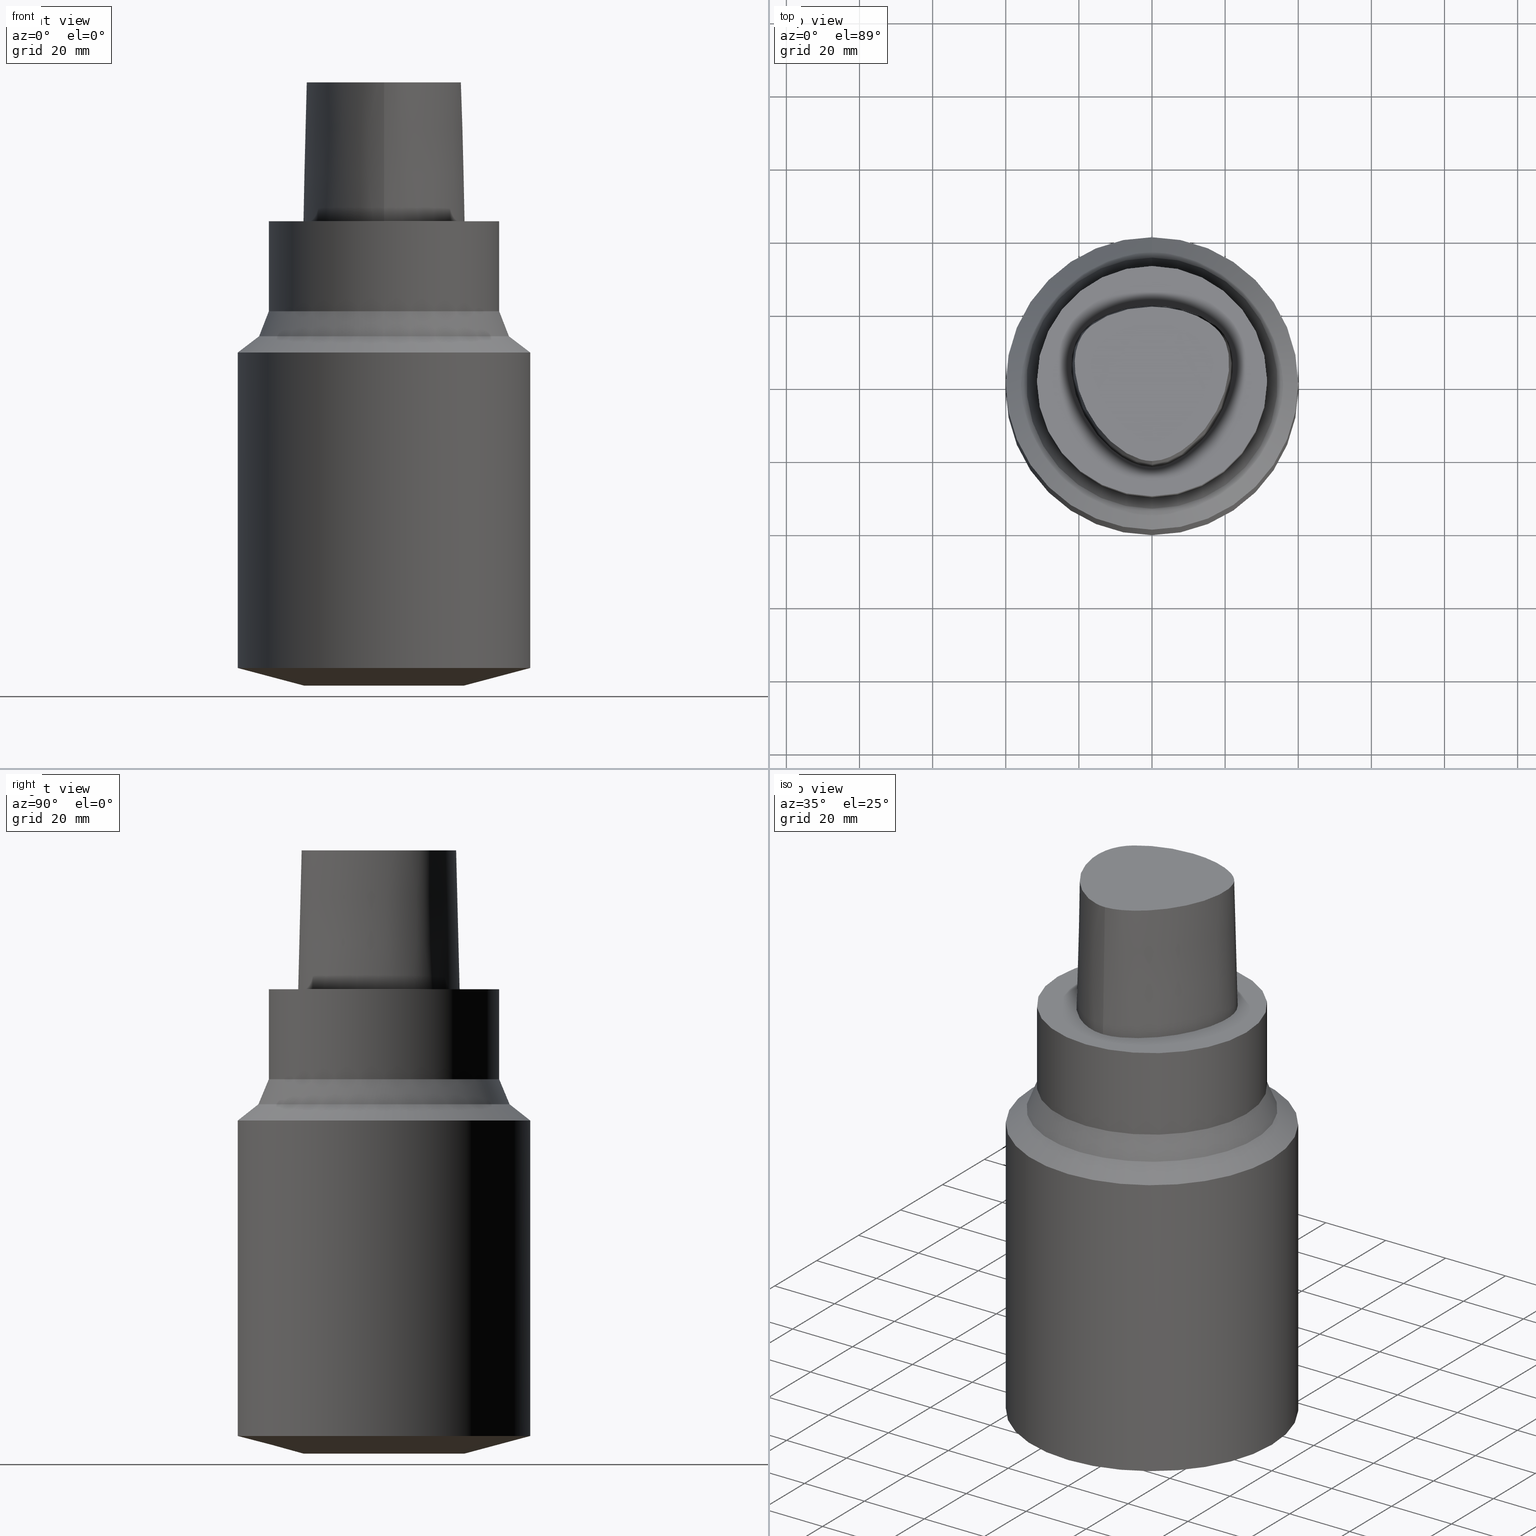
[diagram: canonical four-view strip — front | top / right | iso, engineering-drawing reading convention]
A machine part, canonical four-view strip (front | top / right | iso — engineering-drawing reading convention). The complete STEP part file that produces these views, byte-faithful:
ISO-10303-21;
HEADER;
FILE_DESCRIPTION((''),'1');
FILE_NAME('V:/01_Dxf_Field-HP\X2\FF71FF6FFF8CFF9F5916\X0\2013/BIGKAISER\X2\FF76FF80FF9BFF78FF9E63B28F095206\X0\_BKUS_201803/C6-BSL/C6-BSL1.500-5.stp','2018-03-14T07:46:52',(''),(''),'Spatial Interop R21 SP3','Kubotek KeyCreator 2011 V10.0.2 (22737)',' ');
FILE_SCHEMA(('automotive_design'));
ENDSEC;
DATA;
#1=MECHANICAL_DESIGN_GEOMETRIC_PRESENTATION_REPRESENTATION(' ',(#10,#11,#12,#13,#14,#15,#16,#17,#18,#19,#20,#21,#22,#23,#24,#25,#26,#27,#28,#29,#30,#31,#32,#33,#34,#35),#6);
#2=PRODUCT_DEFINITION_CONTEXT('',#36,'design');
#3=APPLICATION_PROTOCOL_DEFINITION('INTERNATIONAL STANDARD','automotive_design',1994,#36);
#4=PRODUCT_CATEGORY_RELATIONSHIP('NONE','NONE',#37,#38);
#5=SHAPE_DEFINITION_REPRESENTATION(#39,#40);
#6= (GEOMETRIC_REPRESENTATION_CONTEXT(3)GLOBAL_UNCERTAINTY_ASSIGNED_CONTEXT((#43))GLOBAL_UNIT_ASSIGNED_CONTEXT((#45,#46,#47))REPRESENTATION_CONTEXT('NONE','WORKSPACE'));
#10=STYLED_ITEM('',(#49,#50),#51);
#11=STYLED_ITEM('',(#52),#53);
#12=STYLED_ITEM('',(#54),#55);
#13=STYLED_ITEM('',(#56),#57);
#14=STYLED_ITEM('',(#58,#59),#60);
#15=STYLED_ITEM('',(#61),#62);
#16=STYLED_ITEM('',(#63),#64);
#17=STYLED_ITEM('',(#65,#66),#67);
#18=STYLED_ITEM('',(#68),#69);
#19=STYLED_ITEM('',(#70,#71),#72);
#20=STYLED_ITEM('',(#73,#74),#75);
#21=STYLED_ITEM('',(#76,#77),#78);
#22=STYLED_ITEM('',(#79),#80);
#23=STYLED_ITEM('',(#81,#82),#83);
#24=STYLED_ITEM('',(#84),#85);
#25=STYLED_ITEM('',(#86),#87);
#26=STYLED_ITEM('',(#88,#89),#90);
#27=STYLED_ITEM('',(#91,#92),#93);
#28=STYLED_ITEM('',(#94),#95);
#29=STYLED_ITEM('',(#96,#97),#98);
#30=STYLED_ITEM('',(#99),#100);
#31=STYLED_ITEM('',(#101,#102),#103);
#32=STYLED_ITEM('',(#104),#105);
#33=STYLED_ITEM('',(#106,#107),#108);
#34=STYLED_ITEM('',(#109),#110);
#35=STYLED_ITEM('',(#111),#112);
#36=APPLICATION_CONTEXT(' ');
#37=PRODUCT_CATEGORY('part','NONE');
#38=PRODUCT_RELATED_PRODUCT_CATEGORY('detail',' ',(#113));
#39=PRODUCT_DEFINITION_SHAPE('NONE','NONE',#114);
#40=ADVANCED_BREP_SHAPE_REPRESENTATION('Unnamed[1]',(#75,#115),#6);
#43=UNCERTAINTY_MEASURE_WITH_UNIT(LENGTH_MEASURE(1.0E-006),#45,'','');
#45= (CONVERSION_BASED_UNIT('MILLIMETRE',#118)LENGTH_UNIT()NAMED_UNIT(#121));
#46= (NAMED_UNIT(#123)PLANE_ANGLE_UNIT()SI_UNIT($,.RADIAN.));
#47= (NAMED_UNIT(#123)SOLID_ANGLE_UNIT()SI_UNIT($,.STERADIAN.));
#49=PRESENTATION_STYLE_ASSIGNMENT((#129));
#50=PRESENTATION_STYLE_ASSIGNMENT((#130));
#51=ADVANCED_FACE('Unnamed[1]',(#131,#132),#133,.T.);
#52=PRESENTATION_STYLE_ASSIGNMENT((#134));
#53=EDGE_CURVE('Unnamed[1]',#135,#136,#137,.T.);
#54=PRESENTATION_STYLE_ASSIGNMENT((#138));
#55=EDGE_CURVE('Unnamed[1]',#139,#135,#140,.T.);
#56=PRESENTATION_STYLE_ASSIGNMENT((#141));
#57=EDGE_CURVE('Unnamed[1]',#142,#143,#144,.T.);
#58=PRESENTATION_STYLE_ASSIGNMENT((#145));
#59=PRESENTATION_STYLE_ASSIGNMENT((#146));
#60=ADVANCED_FACE('Unnamed[1]',(#147),#148,.T.);
#61=PRESENTATION_STYLE_ASSIGNMENT((#149));
#62=EDGE_CURVE('Unnamed[1]',#150,#150,#151,.T.);
#63=PRESENTATION_STYLE_ASSIGNMENT((#152));
#64=EDGE_CURVE('Unnamed[1]',#142,#136,#153,.T.);
#65=PRESENTATION_STYLE_ASSIGNMENT((#154));
#66=PRESENTATION_STYLE_ASSIGNMENT((#155));
#67=ADVANCED_FACE('Unnamed[1]',(#156),#157,.T.);
#68=PRESENTATION_STYLE_ASSIGNMENT((#158));
#69=EDGE_CURVE('Unnamed[1]',#136,#139,#159,.T.);
#70=PRESENTATION_STYLE_ASSIGNMENT((#160));
#71=PRESENTATION_STYLE_ASSIGNMENT((#161));
#72=ADVANCED_FACE('Unnamed[1]',(#162,#163),#164,.T.);
#73=PRESENTATION_STYLE_ASSIGNMENT((#165));
#74=PRESENTATION_STYLE_ASSIGNMENT((#166));
#75=MANIFOLD_SOLID_BREP('Unnamed[1]',#167);
#76=PRESENTATION_STYLE_ASSIGNMENT((#168));
#77=PRESENTATION_STYLE_ASSIGNMENT((#169));
#78=ADVANCED_FACE('Unnamed[1]',(#170,#171),#172,.T.);
#79=PRESENTATION_STYLE_ASSIGNMENT((#173));
#80=EDGE_CURVE('Unnamed[1]',#174,#174,#175,.T.);
#81=PRESENTATION_STYLE_ASSIGNMENT((#176));
#82=PRESENTATION_STYLE_ASSIGNMENT((#177));
#83=ADVANCED_FACE('Unnamed[1]',(#178),#179,.T.);
#84=PRESENTATION_STYLE_ASSIGNMENT((#180));
#85=EDGE_CURVE('Unnamed[1]',#181,#181,#182,.T.);
#86=PRESENTATION_STYLE_ASSIGNMENT((#183));
#87=EDGE_CURVE('Unnamed[1]',#184,#184,#185,.T.);
#88=PRESENTATION_STYLE_ASSIGNMENT((#186));
#89=PRESENTATION_STYLE_ASSIGNMENT((#187));
#90=ADVANCED_FACE('Unnamed[1]',(#188,#189),#190,.T.);
#91=PRESENTATION_STYLE_ASSIGNMENT((#191));
#92=PRESENTATION_STYLE_ASSIGNMENT((#192));
#93=ADVANCED_FACE('Unnamed[1]',(#193),#194,.T.);
#94=PRESENTATION_STYLE_ASSIGNMENT((#195));
#95=EDGE_CURVE('Unnamed[1]',#143,#142,#196,.T.);
#96=PRESENTATION_STYLE_ASSIGNMENT((#197));
#97=PRESENTATION_STYLE_ASSIGNMENT((#198));
#98=ADVANCED_FACE('Unnamed[1]',(#199,#200),#201,.T.);
#99=PRESENTATION_STYLE_ASSIGNMENT((#202));
#100=EDGE_CURVE('Unnamed[1]',#143,#139,#203,.T.);
#101=PRESENTATION_STYLE_ASSIGNMENT((#204));
#102=PRESENTATION_STYLE_ASSIGNMENT((#205));
#103=ADVANCED_FACE('Unnamed[1]',(#206),#207,.T.);
#104=PRESENTATION_STYLE_ASSIGNMENT((#208));
#105=EDGE_CURVE('Unnamed[1]',#209,#209,#210,.T.);
#106=PRESENTATION_STYLE_ASSIGNMENT((#211));
#107=PRESENTATION_STYLE_ASSIGNMENT((#212));
#108=ADVANCED_FACE('Unnamed[1]',(#213,#214),#215,.T.);
#109=PRESENTATION_STYLE_ASSIGNMENT((#216));
#110=EDGE_CURVE('Unnamed[1]',#217,#217,#218,.T.);
#111=PRESENTATION_STYLE_ASSIGNMENT((#219));
#112=EDGE_CURVE('Unnamed[1]',#143,#135,#220,.T.);
#113=PRODUCT('Unnamed[1]','Unnamed[1]','PART-Unnamed[1]-DESC',(#221));
#114=PRODUCT_DEFINITION('NONE','NONE',#222,#2);
#115=AXIS2_PLACEMENT_3D('',#223,#224,#225);
#118=LENGTH_MEASURE_WITH_UNIT(LENGTH_MEASURE(1.0),#226);
#121=DIMENSIONAL_EXPONENTS(1.0,0.0,0.0,0.0,0.0,0.0,0.0);
#123=DIMENSIONAL_EXPONENTS(0.0,0.0,0.0,0.0,0.0,0.0,0.0);
#129=SURFACE_STYLE_USAGE(.BOTH.,#227);
#130=CURVE_STYLE('',#228,POSITIVE_LENGTH_MEASURE(1000.0),#229);
#131=FACE_BOUND('',#230,.T.);
#132=FACE_BOUND('',#231,.T.);
#133=CONICAL_SURFACE('',#232,30.999999999998,1.30899693899575);
#134=CURVE_STYLE('',#233,POSITIVE_LENGTH_MEASURE(1000.0),#234);
#135=VERTEX_POINT('',#235);
#136=VERTEX_POINT('',#236);
#137=B_SPLINE_CURVE_WITH_KNOTS('',3,(#237,#238,#239,#240,#241,#242,#243,#244,#245,#246,#247,#248,#249,#250,#251,#252,#253),.UNSPECIFIED.,.F.,.F.,(4,1,1,1,1,1,1,1,1,1,1,1,1,1,4),(-13.2302678617486,-12.816821991069,-12.4033761203893,-11.9899302497097,-11.57648437903,-11.1630385083504,-10.9563155730106,-10.7495926376707,-10.3361467669911,-9.92270089631145,-9.09580915495216,-8.26891741359287,-7.44202567223358,-7.02857980155394,-6.6151339308743),.UNSPECIFIED.);
#138=CURVE_STYLE('',#254,POSITIVE_LENGTH_MEASURE(1000.0),#255);
#139=VERTEX_POINT('',#256);
#140=CIRCLE('',#257,0.949936168436318);
#141=CURVE_STYLE('',#258,POSITIVE_LENGTH_MEASURE(1000.0),#259);
#142=VERTEX_POINT('',#260);
#143=VERTEX_POINT('',#261);
#144=B_SPLINE_CURVE_WITH_KNOTS('',3,(#262,#263,#264,#265,#266,#267,#268,#269,#270,#271,#272,#273,#274,#275,#276,#277),.UNSPECIFIED.,.F.,.F.,(4,1,1,1,1,1,1,1,1,1,1,1,1,4),(6.61513393087476,6.99917207152274,7.48193246986995,7.96289324787093,8.45540287038584,9.10291653679981,9.67129810936083,10.1618749681153,10.6358867802489,11.1080734988593,11.6043706019633,12.09451993853,12.6985979284494,13.2302678617486),.UNSPECIFIED.);
#145=SURFACE_STYLE_USAGE(.BOTH.,#278);
#146=CURVE_STYLE('',#279,POSITIVE_LENGTH_MEASURE(1000.0),#280);
#147=FACE_OUTER_BOUND('',#281,.T.);
#148=B_SPLINE_SURFACE_WITH_KNOTS('',3,3,((#282,#283,#284,#285),(#286,#287,#288,#289),(#290,#291,#292,#293),(#294,#295,#296,#297),(#298,#299,#300,#301),(#302,#303,#304,#305),(#306,#307,#308,#309),(#310,#311,#312,#313),(#314,#315,#316,#317),(#318,#319,#320,#321),(#322,#323,#324,#325),(#326,#327,#328,#329),(#330,#331,#332,#333),(#334,#335,#336,#337),(#338,#339,#340,#341),(#342,#343,#344,#345),(#346,#347,#348,#349)),.UNSPECIFIED.,.F.,.F.,.F.,(4,1,1,1,1,1,1,1,1,1,1,1,1,1,4),(4,4),(-13.2302678617486,-12.816821991069,-12.4033761203893,-11.9899302497097,-11.57648437903,-11.1630385083504,-10.9563155730106,-10.7495926376707,-10.3361467669911,-9.92270089631145,-9.09580915495216,-8.26891741359287,-7.44202567223358,-7.02857980155394,-6.6151339308743),(-3.8,0.0),.UNSPECIFIED.);
#149=CURVE_STYLE('',#350,POSITIVE_LENGTH_MEASURE(1000.0),#351);
#150=VERTEX_POINT('',#352);
#151=CIRCLE('',#353,31.5);
#152=CURVE_STYLE('',#354,POSITIVE_LENGTH_MEASURE(1000.0),#355);
#153=LINE('',#356,#357);
#154=SURFACE_STYLE_USAGE(.BOTH.,#358);
#155=CURVE_STYLE('',#359,POSITIVE_LENGTH_MEASURE(1000.0),#360);
#156=FACE_OUTER_BOUND('',#361,.T.);
#157=B_SPLINE_SURFACE_WITH_KNOTS('',3,3,((#362,#363,#364,#365),(#366,#367,#368,#369),(#370,#371,#372,#373),(#374,#375,#376,#377),(#378,#379,#380,#381),(#382,#383,#384,#385),(#386,#387,#388,#389),(#390,#391,#392,#393),(#394,#395,#396,#397),(#398,#399,#400,#401),(#402,#403,#404,#405),(#406,#407,#408,#409),(#410,#411,#412,#413),(#414,#415,#416,#417),(#418,#419,#420,#421),(#422,#423,#424,#425),(#426,#427,#428,#429),(#430,#431,#432,#433)),.UNSPECIFIED.,.F.,.F.,.F.,(4,1,1,1,1,1,1,1,1,2,1,1,1,1,4),(4,4),(-6.6151339308743,-6.20168806019465,-5.78824218951501,-5.37479631883537,-4.96135044815572,-4.13445870679644,-3.30756696543715,-2.89412109475751,-2.48067522407786,-2.06722935339822,-1.65378348271857,-1.24033761203893,-0.826891741359287,-0.413445870679644,0.0),(-3.8,0.0),.UNSPECIFIED.);
#158=CURVE_STYLE('',#434,POSITIVE_LENGTH_MEASURE(1000.0),#435);
#159=B_SPLINE_CURVE_WITH_KNOTS('',3,(#436,#437,#438,#439,#440,#441,#442,#443,#444,#445,#446,#447,#448,#449,#450,#451,#452,#453),.UNSPECIFIED.,.F.,.F.,(4,1,1,1,1,1,1,1,1,2,1,1,1,1,4),(-6.6151339308743,-6.20168806019465,-5.78824218951501,-5.37479631883537,-4.96135044815572,-4.13445870679644,-3.30756696543715,-2.89412109475751,-2.48067522407786,-2.06722935339822,-1.65378348271857,-1.24033761203893,-0.826891741359287,-0.413445870679644,0.0),.UNSPECIFIED.);
#160=SURFACE_STYLE_USAGE(.BOTH.,#454);
#161=CURVE_STYLE('',#455,POSITIVE_LENGTH_MEASURE(1000.0),#456);
#162=FACE_BOUND('',#457,.T.);
#163=FACE_BOUND('',#458,.T.);
#164=CONICAL_SURFACE('',#459,37.1747810008946,0.903819641351559);
#165=SURFACE_STYLE_USAGE(.BOTH.,#460);
#166=CURVE_STYLE('',#461,POSITIVE_LENGTH_MEASURE(1000.0),#462);
#167=CLOSED_SHELL('',(#60,#67,#103,#83,#90,#108,#98,#72,#78,#51,#93));
#168=SURFACE_STYLE_USAGE(.BOTH.,#463);
#169=CURVE_STYLE('',#464,POSITIVE_LENGTH_MEASURE(1000.0),#465);
#170=FACE_BOUND('',#466,.T.);
#171=FACE_BOUND('',#467,.T.);
#172=CYLINDRICAL_SURFACE('',#468,40.0000000000142);
#173=CURVE_STYLE('',#469,POSITIVE_LENGTH_MEASURE(1000.0),#470);
#174=VERTEX_POINT('',#471);
#175=CIRCLE('',#472,40.0000000000324);
#176=SURFACE_STYLE_USAGE(.BOTH.,#473);
#177=CURVE_STYLE('',#474,POSITIVE_LENGTH_MEASURE(1000.0),#475);
#178=FACE_OUTER_BOUND('',#476,.T.);
#179=PLANE('',#477);
#180=CURVE_STYLE('',#478,POSITIVE_LENGTH_MEASURE(1000.0),#479);
#181=VERTEX_POINT('',#480);
#182=CIRCLE('',#481,31.5);
#183=CURVE_STYLE('',#482,POSITIVE_LENGTH_MEASURE(1000.0),#483);
#184=VERTEX_POINT('',#484);
#185=CIRCLE('',#485,34.3495620017568);
#186=SURFACE_STYLE_USAGE(.BOTH.,#486);
#187=CURVE_STYLE('',#487,POSITIVE_LENGTH_MEASURE(1000.0),#488);
#188=FACE_BOUND('',#489,.T.);
#189=FACE_OUTER_BOUND('',#490,.T.);
#190=PLANE('',#491);
#191=SURFACE_STYLE_USAGE(.BOTH.,#492);
#192=CURVE_STYLE('',#493,POSITIVE_LENGTH_MEASURE(1000.0),#494);
#193=FACE_OUTER_BOUND('',#495,.T.);
#194=PLANE('',#496);
#195=CURVE_STYLE('',#497,POSITIVE_LENGTH_MEASURE(1000.0),#498);
#196=B_SPLINE_CURVE_WITH_KNOTS('',3,(#499,#500,#501,#502,#503,#504,#505,#506,#507,#508,#509,#510,#511,#512,#513,#514),.UNSPECIFIED.,.F.,.F.,(4,1,1,1,1,1,1,1,1,1,1,1,1,4),(0.0,0.447924670568964,0.9388024242536,1.50591409090711,2.07314340012323,2.72424957442464,3.2253501842849,3.80982102049476,4.34867996267067,4.85900173381144,5.37972031856977,6.03459825488646,6.61113557741484,6.61513393087395),.UNSPECIFIED.);
#197=SURFACE_STYLE_USAGE(.BOTH.,#515);
#198=CURVE_STYLE('',#516,POSITIVE_LENGTH_MEASURE(1000.0),#517);
#199=FACE_BOUND('',#518,.T.);
#200=FACE_BOUND('',#519,.T.);
#201=CONICAL_SURFACE('',#520,32.9247810008784,0.394554409968622);
#202=CURVE_STYLE('',#521,POSITIVE_LENGTH_MEASURE(1000.0),#522);
#203=LINE('',#523,#524);
#204=SURFACE_STYLE_USAGE(.BOTH.,#525);
#205=CURVE_STYLE('',#526,POSITIVE_LENGTH_MEASURE(1000.0),#527);
#206=FACE_OUTER_BOUND('',#528,.T.);
#207=CONICAL_SURFACE('',#529,1.0,0.0249931148600041);
#208=CURVE_STYLE('',#530,POSITIVE_LENGTH_MEASURE(1000.0),#531);
#209=VERTEX_POINT('',#532);
#210=CIRCLE('',#533,21.9999999999999);
#211=SURFACE_STYLE_USAGE(.BOTH.,#534);
#212=CURVE_STYLE('',#535,POSITIVE_LENGTH_MEASURE(1000.0),#536);
#213=FACE_BOUND('',#537,.T.);
#214=FACE_BOUND('',#538,.T.);
#215=CYLINDRICAL_SURFACE('',#539,31.5);
#216=CURVE_STYLE('',#540,POSITIVE_LENGTH_MEASURE(1000.0),#541);
#217=VERTEX_POINT('',#542);
#218=CIRCLE('',#543,39.9999999999961);
#219=CURVE_STYLE('',#544,POSITIVE_LENGTH_MEASURE(1000.0),#545);
#220=LINE('',#546,#547);
#221=PRODUCT_CONTEXT('',#36,'mechanical');
#222=PRODUCT_DEFINITION_FORMATION_WITH_SPECIFIED_SOURCE(' ','NONE',#113,.NOT_KNOWN.);
#223=CARTESIAN_POINT('',(0.0,0.0,0.0));
#224=DIRECTION('',(0.0,0.0,1.0));
#225=DIRECTION('',(1.0,0.0,0.0));
#226= (NAMED_UNIT(#121)LENGTH_UNIT()SI_UNIT(.MILLI.,.METRE.));
#227=SURFACE_SIDE_STYLE('',(#549));
#228=DRAUGHTING_PRE_DEFINED_CURVE_FONT('continuous');
#229=COLOUR_RGB('',0.0,1.0,0.0);
#230=EDGE_LOOP('',(#550));
#231=EDGE_LOOP('',(#551));
#232=AXIS2_PLACEMENT_3D('',#552,#553,#554);
#233=DRAUGHTING_PRE_DEFINED_CURVE_FONT('continuous');
#234=COLOUR_RGB('',0.0,1.0,0.0);
#235=CARTESIAN_POINT('',(0.044682985379347,20.6765087343109,1.61778115328528E-031));
#236=CARTESIAN_POINT('',(0.04359356758149,-23.4691235068931,7.78075697532443E-032));
#237=CARTESIAN_POINT('',(0.044682985379347,20.6765087343109,1.61778115328528E-031));
#238=CARTESIAN_POINT('',(1.42379272427753,20.6097915814392,8.62816615085482E-032));
#239=CARTESIAN_POINT('',(4.2230955003445,20.4837538303966,1.4791141972894E-031));
#240=CARTESIAN_POINT('',(8.47220762821777,19.6890432607088,9.86076131526265E-032));
#241=CARTESIAN_POINT('',(12.5141247708253,18.2434968480404,0.0));
#242=CARTESIAN_POINT('',(16.3038624872874,16.1734192182143,1.97215226305253E-031));
#243=CARTESIAN_POINT('',(19.1446913988473,13.7036723639434,-1.97215226305253E-031));
#244=CARTESIAN_POINT('',(20.7319894342149,11.1014620996188,0.0));
#245=CARTESIAN_POINT('',(21.7831756505763,8.28099229708081,-1.97215226305253E-031));
#246=CARTESIAN_POINT('',(22.2258240701438,4.60865440596506,0.0));
#247=CARTESIAN_POINT('',(21.7436130080666,-1.11326526354485,0.0));
#248=CARTESIAN_POINT('',(19.5519487660502,-7.95432366164584,0.0));
#249=CARTESIAN_POINT('',(14.9574167123838,-15.2089785567293,0.0));
#250=CARTESIAN_POINT('',(9.66840283021945,-20.0827414369705,-9.86076131526265E-032));
#251=CARTESIAN_POINT('',(4.51628650521788,-22.7946374572188,-9.86076131526265E-032));
#252=CARTESIAN_POINT('',(1.55867251738073,-23.4612972770043,-1.23259516440783E-032));
#253=CARTESIAN_POINT('',(0.04359356758149,-23.4691235068931,7.78075697532443E-032));
#254=DRAUGHTING_PRE_DEFINED_CURVE_FONT('continuous');
#255=COLOUR_RGB('',0.0,1.0,0.0);
#256=CARTESIAN_POINT('',(-0.045171994691285,20.6766009553285,1.6755590516169E-031));
#257=AXIS2_PLACEMENT_3D('',#555,#556,#557);
#258=DRAUGHTING_PRE_DEFINED_CURVE_FONT('continuous');
#259=COLOUR_RGB('',0.0,1.0,0.0);
#260=CARTESIAN_POINT('',(0.038736923393866,-22.5191997536361,38.0));
#261=CARTESIAN_POINT('',(-0.001218547003662,19.7276821925089,38.0));
#262=CARTESIAN_POINT('',(0.038736923394311,-22.519199753636,38.0));
#263=CARTESIAN_POINT('',(1.31742058183662,-22.512662269405,38.0));
#264=CARTESIAN_POINT('',(4.2093773447498,-21.9116226439989,38.0));
#265=CARTESIAN_POINT('',(8.20895504542113,-19.7798683845067,38.0));
#266=CARTESIAN_POINT('',(11.9784633234593,-16.681663904162,38.0));
#267=CARTESIAN_POINT('',(15.5308821579362,-12.5807487594113,38.0));
#268=CARTESIAN_POINT('',(18.4566248438667,-7.64932246015528,38.0));
#269=CARTESIAN_POINT('',(20.4036090752029,-2.27012499825289,38.0));
#270=CARTESIAN_POINT('',(21.2357187429189,2.79891401173156,38.0));
#271=CARTESIAN_POINT('',(21.0811206267748,7.62543090736657,38.0));
#272=CARTESIAN_POINT('',(19.3383577336563,12.2772250726194,38.0));
#273=CARTESIAN_POINT('',(15.5796322014404,15.5799672120682,38.0));
#274=CARTESIAN_POINT('',(10.8392956074438,17.9834601687347,38.0));
#275=CARTESIAN_POINT('',(5.56068045850571,19.4586143858472,38.0));
#276=CARTESIAN_POINT('',(1.77223893711014,19.6418877095654,38.0));
#277=CARTESIAN_POINT('',(-0.001218367817519,19.7276822012873,38.0));
#278=SURFACE_SIDE_STYLE('',(#558));
#279=DRAUGHTING_PRE_DEFINED_CURVE_FONT('continuous');
#280=COLOUR_RGB('',0.0,1.0,0.0);
#281=EDGE_LOOP('',(#559,#560,#561,#562));
#282=CARTESIAN_POINT('',(-0.001218367817519,19.7276822012873,38.0));
#283=CARTESIAN_POINT('',(0.014082083248157,20.0439577123075,25.3333333333066));
#284=CARTESIAN_POINT('',(0.029382534313671,20.3602332232908,12.6666666666934));
#285=CARTESIAN_POINT('',(0.044682985379347,20.6765087343109,1.61778115328528E-031));
#286=CARTESIAN_POINT('',(1.37788651195108,19.6609652834875,38.0));
#287=CARTESIAN_POINT('',(1.3931885827258,19.9772407169847,25.3333333333066));
#288=CARTESIAN_POINT('',(1.40849065356095,20.2935162254648,12.6666666666934));
#289=CARTESIAN_POINT('',(1.42379272427753,20.6097915814392,8.62816615085482E-032));
#290=CARTESIAN_POINT('',(4.135446440878,19.5347778787784,38.0));
#291=CARTESIAN_POINT('',(4.16466278851883,19.8511031866125,25.3333333333066));
#292=CARTESIAN_POINT('',(4.1938791526746,20.1674284644204,12.6666666666934));
#293=CARTESIAN_POINT('',(4.2230955003445,20.4837538303966,1.4791141972894E-031));
#294=CARTESIAN_POINT('',(8.213607363795,18.7706026638736,38.0));
#295=CARTESIAN_POINT('',(8.29980745008421,19.0767495109635,25.3333333333066));
#296=CARTESIAN_POINT('',(8.38600751285747,19.3828964329996,12.6666666666934));
#297=CARTESIAN_POINT('',(8.47220762821777,19.6890432607088,9.86076131526265E-032));
#298=CARTESIAN_POINT('',(12.1316338645671,17.3698624840857,38.0));
#299=CARTESIAN_POINT('',(12.2591308270381,17.6610739397708,25.3333333333066));
#300=CARTESIAN_POINT('',(12.3866278083543,17.9522853923553,12.6666666666934));
#301=CARTESIAN_POINT('',(12.5141247708253,18.2434968480404,0.0));
#302=CARTESIAN_POINT('',(15.7706546153679,15.3789501349612,38.0));
#303=CARTESIAN_POINT('',(15.9483905900895,15.6437731794811,25.3333333333066));
#304=CARTESIAN_POINT('',(16.1261265513272,15.9085961736944,12.6666666666934));
#305=CARTESIAN_POINT('',(16.3038624872874,16.1734192182143,1.97215226305253E-031));
#306=CARTESIAN_POINT('',(18.4265894256284,13.0570022172893,38.0));
#307=CARTESIAN_POINT('',(18.6659567517146,13.2725589420689,25.3333333333066));
#308=CARTESIAN_POINT('',(18.9053240921419,13.4881156488541,12.6666666666934));
#309=CARTESIAN_POINT('',(19.1446913988473,13.7036723639434,-1.97215226305253E-031));
#310=CARTESIAN_POINT('',(19.8679958653038,10.6923771981998,38.0));
#311=CARTESIAN_POINT('',(20.1559937048299,10.8287388264873,25.3333333333066));
#312=CARTESIAN_POINT('',(20.4439915656177,10.965100461641,12.6666666666934));
#313=CARTESIAN_POINT('',(20.7319894342149,11.1014620996188,0.0));
#314=CARTESIAN_POINT('',(20.8470867582337,8.07149548576131,38.0));
#315=CARTESIAN_POINT('',(21.1591164072431,8.14132775555392,25.3333333333066));
#316=CARTESIAN_POINT('',(21.4711459821861,8.21116003697855,12.6666666666934));
#317=CARTESIAN_POINT('',(21.7831756505763,8.28099229708081,-1.97215226305253E-031));
#318=CARTESIAN_POINT('',(21.2693244256982,4.61157245650171,38.0));
#319=CARTESIAN_POINT('',(21.5881576801997,4.6105997689982,25.3333333333066));
#320=CARTESIAN_POINT('',(21.9069908544037,4.60962709346857,12.6666666666934));
#321=CARTESIAN_POINT('',(22.2258240701438,4.60865440596506,0.0));
#322=CARTESIAN_POINT('',(20.8071610855575,-0.912828649855193,38.0));
#323=CARTESIAN_POINT('',(21.119311671178,-0.979640884839481,25.3333333333066));
#324=CARTESIAN_POINT('',(21.4314624224461,-1.04645306732201,12.6666666666934));
#325=CARTESIAN_POINT('',(21.7436130080666,-1.11326526354485,0.0));
#326=CARTESIAN_POINT('',(18.6841935581315,-7.54428794252837,38.0));
#327=CARTESIAN_POINT('',(18.9734452551861,-7.6809665891091,25.3333333333066));
#328=CARTESIAN_POINT('',(19.2626970689956,-7.81764505382656,12.6666666666934));
#329=CARTESIAN_POINT('',(19.5519487660502,-7.95432366164584,0.0));
#330=CARTESIAN_POINT('',(14.2175552814,-14.5971504342323,38.0));
#331=CARTESIAN_POINT('',(14.4641757465198,-14.8010930946929,25.3333333333066));
#332=CARTESIAN_POINT('',(14.710796247264,-15.0050359737917,12.6666666666934));
#333=CARTESIAN_POINT('',(14.9574167123838,-15.2089785567293,0.0));
#334=CARTESIAN_POINT('',(9.0844808732933,-19.3179298129689,38.0));
#335=CARTESIAN_POINT('',(9.27912152349017,-19.572866915557,25.3333333333066));
#336=CARTESIAN_POINT('',(9.47376218971294,-19.827804295621,12.6666666666934));
#337=CARTESIAN_POINT('',(9.66840283021945,-20.0827414369705,-9.86076131526265E-032));
#338=CARTESIAN_POINT('',(4.17112919194182,-21.8987568152736,38.0));
#339=CARTESIAN_POINT('',(4.28618163483998,-22.1973837173649,25.3333333333066));
#340=CARTESIAN_POINT('',(4.40123406239433,-22.4960105163661,12.6666666666934));
#341=CARTESIAN_POINT('',(4.51628650521788,-22.7946374572188,-9.86076131526265E-032));
#342=CARTESIAN_POINT('',(1.41533654381097,-22.5120888467812,38.0));
#343=CARTESIAN_POINT('',(1.46311520162011,-22.8284916374445,25.3333333333066));
#344=CARTESIAN_POINT('',(1.51089385942236,-23.144894486341,12.6666666666934));
#345=CARTESIAN_POINT('',(1.55867251738073,-23.4612972770043,-1.23259516440783E-032));
#346=CARTESIAN_POINT('',(0.038736923393866,-22.5191997536361,38.0));
#347=CARTESIAN_POINT('',(0.04035580478973,-22.8358410047159,25.3333333333066));
#348=CARTESIAN_POINT('',(0.041974686185626,-23.1524822558133,12.6666666666934));
#349=CARTESIAN_POINT('',(0.04359356758149,-23.4691235068931,7.78075697532443E-032));
#350=DRAUGHTING_PRE_DEFINED_CURVE_FONT('continuous');
#351=COLOUR_RGB('',0.0,1.0,0.0);
#352=CARTESIAN_POINT('',(1.50597243309191E-015,31.5,-24.594396264138));
#353=AXIS2_PLACEMENT_3D('',#563,#564,#565);
#354=DRAUGHTING_PRE_DEFINED_CURVE_FONT('continuous');
#355=COLOUR_RGB('',0.0,1.0,0.0);
#356=CARTESIAN_POINT('',(0.038736923393866,-22.5191997536361,38.0));
#357=VECTOR('',#566,38.0118715498723);
#358=SURFACE_SIDE_STYLE('',(#567));
#359=DRAUGHTING_PRE_DEFINED_CURVE_FONT('continuous');
#360=COLOUR_RGB('',0.0,1.0,0.0);
#361=EDGE_LOOP('',(#568,#569,#570,#571));
#362=CARTESIAN_POINT('',(0.038736923393866,-22.5191997536361,38.0));
#363=CARTESIAN_POINT('',(0.04035580478973,-22.8358410047159,25.3333333333066));
#364=CARTESIAN_POINT('',(0.041974686185626,-23.1524822558133,12.6666666666934));
#365=CARTESIAN_POINT('',(0.04359356758149,-23.4691235068931,7.78075697532443E-032));
#366=CARTESIAN_POINT('',(-1.33786123484754,-22.5261650259856,38.0));
#367=CARTESIAN_POINT('',(-1.38240731367927,-22.8430399310626,25.3333333333066));
#368=CARTESIAN_POINT('',(-1.42695339249092,-23.1599147815484,12.6666666666934));
#369=CARTESIAN_POINT('',(-1.4714994713963,-23.4767895315797,2.46519032881566E-032));
#370=CARTESIAN_POINT('',(-4.08909358431842,-21.9268839879558,38.0));
#371=CARTESIAN_POINT('',(-4.20580731135515,-22.2249725500078,25.3333333333066));
#372=CARTESIAN_POINT('',(-4.32252104640446,-22.5230611651922,12.6666666666934));
#373=CARTESIAN_POINT('',(-4.43923476371401,-22.821149804767,-4.93038065763132E-032));
#374=CARTESIAN_POINT('',(-7.8333083619947,-19.9973514861616,38.0));
#375=CARTESIAN_POINT('',(-8.00568301809614,-20.2649260859405,25.3333333333066));
#376=CARTESIAN_POINT('',(-8.1780576640789,-20.532500564315,12.6666666666934));
#377=CARTESIAN_POINT('',(-8.35043230079961,-20.8000751253325,-9.86076131526265E-032));
#378=CARTESIAN_POINT('',(-11.1035071147626,-17.450554957873,38.0));
#379=CARTESIAN_POINT('',(-11.3173048160562,-17.6855739222454,25.3333333333066));
#380=CARTESIAN_POINT('',(-11.5311025116181,-17.9205928617968,12.6666666666934));
#381=CARTESIAN_POINT('',(-11.744900222602,-18.1556117874078,-1.97215226305253E-031));
#382=CARTESIAN_POINT('',(-14.9379535189057,-13.461132049697,38.0));
#383=CARTESIAN_POINT('',(-15.191622410671,-13.6542981711372,25.3333333333066));
#384=CARTESIAN_POINT('',(-15.4452913389853,-13.8474645327131,12.6666666666934));
#385=CARTESIAN_POINT('',(-15.6989602501314,-14.0406306929147,-1.97215226305253E-031));
#386=CARTESIAN_POINT('',(-18.6681263017223,-7.59391757463204,38.0));
#387=CARTESIAN_POINT('',(-18.9571800800711,-7.73136168081928,25.3333333333066));
#388=CARTESIAN_POINT('',(-19.2462337287194,-7.86880572399774,12.6666666666934));
#389=CARTESIAN_POINT('',(-19.5352875070682,-8.00624990770787,1.97215226305253E-031));
#390=CARTESIAN_POINT('',(-20.7857899858339,-0.952862819790525,38.0));
#391=CARTESIAN_POINT('',(-21.0973808305434,-1.02218087467418,25.3333333333066));
#392=CARTESIAN_POINT('',(-21.408971677436,-1.09149899580772,12.6666666666934));
#393=CARTESIAN_POINT('',(-21.7205626190491,-1.16081708945282,0.0));
#394=CARTESIAN_POINT('',(-21.2911760556836,4.5469215763113,38.0));
#395=CARTESIAN_POINT('',(-21.610337904926,4.54783292082248,25.3333333333066));
#396=CARTESIAN_POINT('',(-21.9294998290918,4.54874426225691,12.6666666666934));
#397=CARTESIAN_POINT('',(-22.2486616783342,4.54965558738736,0.0));
#398=CARTESIAN_POINT('',(-20.7345309521958,8.74909381391006,38.0));
#399=CARTESIAN_POINT('',(-21.0445680426217,8.83349432450556,25.3333333333066));
#400=CARTESIAN_POINT('',(-21.3546050933631,8.91789488065068,12.6666666666934));
#401=CARTESIAN_POINT('',(-21.6646421256468,9.00229539124618,0.0));
#402=CARTESIAN_POINT('',(-19.5531512296439,11.3174844040833,38.0));
#403=CARTESIAN_POINT('',(-19.8336219699984,11.4710077674213,25.3333333333066));
#404=CARTESIAN_POINT('',(-20.1140927680763,11.6245311337623,12.6666666666934));
#405=CARTESIAN_POINT('',(-20.3945635471922,11.7780544971003,0.0));
#406=CARTESIAN_POINT('',(-17.9100913688793,13.524027510437,38.0));
#407=CARTESIAN_POINT('',(-18.1375785458768,13.7487051053655,25.3333333333066));
#408=CARTESIAN_POINT('',(-18.365065665211,13.9733826973296,12.6666666666934));
#409=CARTESIAN_POINT('',(-18.5925528034471,14.1980602922581,0.0));
#410=CARTESIAN_POINT('',(-15.7996349656398,15.3762170634413,38.0));
#411=CARTESIAN_POINT('',(-15.9739761051783,15.6434029846179,25.3333333333066));
#412=CARTESIAN_POINT('',(-16.1483172726872,15.9105889315134,12.6666666666934));
#413=CARTESIAN_POINT('',(-16.3226584122258,16.1777748720707,0.0));
#414=CARTESIAN_POINT('',(-12.1175640002064,17.3825162484012,38.0));
#415=CARTESIAN_POINT('',(-12.2475895903055,17.6724842099619,25.3333333333066));
#416=CARTESIAN_POINT('',(-12.3776152070492,17.9624521925696,12.6666666666934));
#417=CARTESIAN_POINT('',(-12.5076407874579,18.2524201541303,9.86076131526265E-032));
#418=CARTESIAN_POINT('',(-8.21761151654222,18.7588585989994,38.0));
#419=CARTESIAN_POINT('',(-8.30099497910627,19.0656105427881,25.3333333333066));
#420=CARTESIAN_POINT('',(-8.38437843913309,19.3723624535439,12.6666666666934));
#421=CARTESIAN_POINT('',(-8.46776192107786,19.679114377952,9.86076131526265E-032));
#422=CARTESIAN_POINT('',(-4.13466093881225,19.5396850837055,38.0));
#423=CARTESIAN_POINT('',(-4.16658562115465,19.8557172636973,25.3333333333066));
#424=CARTESIAN_POINT('',(-4.19851029939059,20.1717494367229,12.6666666666934));
#425=CARTESIAN_POINT('',(-4.23043497193604,20.487781597334,1.97215226305253E-031));
#426=CARTESIAN_POINT('',(-1.37917220403684,19.6638560588908,38.0));
#427=CARTESIAN_POINT('',(-1.39382511685176,19.98016223565,25.3333333333066));
#428=CARTESIAN_POINT('',(-1.40847802945569,20.296468399885,12.6666666666934));
#429=CARTESIAN_POINT('',(-1.42313094248379,20.6127745766442,1.10933564796705E-031));
#430=CARTESIAN_POINT('',(-0.001218547003662,19.7276821925089,38.0));
#431=CARTESIAN_POINT('',(-0.015869696232855,20.043988446791,25.3333333333066));
#432=CARTESIAN_POINT('',(-0.030520845462092,20.3602947010464,12.6666666666934));
#433=CARTESIAN_POINT('',(-0.045171994691285,20.6766009553285,1.6755590516169E-031));
#434=DRAUGHTING_PRE_DEFINED_CURVE_FONT('continuous');
#435=COLOUR_RGB('',0.0,1.0,0.0);
#436=CARTESIAN_POINT('',(0.04359356758149,-23.4691235068931,7.78075697532443E-032));
#437=CARTESIAN_POINT('',(-1.4714994713963,-23.4767895315797,2.46519032881566E-032));
#438=CARTESIAN_POINT('',(-4.43923476371401,-22.821149804767,-4.93038065763132E-032));
#439=CARTESIAN_POINT('',(-8.35043230079961,-20.8000751253325,-9.86076131526265E-032));
#440=CARTESIAN_POINT('',(-11.744900222602,-18.1556117874078,-1.97215226305253E-031));
#441=CARTESIAN_POINT('',(-15.6989602501314,-14.0406306929147,-1.97215226305253E-031));
#442=CARTESIAN_POINT('',(-19.5352875070682,-8.00624990770787,1.97215226305253E-031));
#443=CARTESIAN_POINT('',(-21.7205626190491,-1.16081708945282,0.0));
#444=CARTESIAN_POINT('',(-22.2486616783342,4.54965558738736,0.0));
#445=CARTESIAN_POINT('',(-21.6646421256468,9.00229539124618,0.0));
#446=CARTESIAN_POINT('',(-20.3945635471922,11.7780544971003,0.0));
#447=CARTESIAN_POINT('',(-18.5925528034471,14.1980602922581,0.0));
#448=CARTESIAN_POINT('',(-16.3226584122258,16.1777748720707,0.0));
#449=CARTESIAN_POINT('',(-12.5076407874579,18.2524201541303,9.86076131526265E-032));
#450=CARTESIAN_POINT('',(-8.46776192107786,19.679114377952,9.86076131526265E-032));
#451=CARTESIAN_POINT('',(-4.23043497193604,20.487781597334,1.97215226305253E-031));
#452=CARTESIAN_POINT('',(-1.42313094248379,20.6127745766442,1.10933564796705E-031));
#453=CARTESIAN_POINT('',(-0.045171994691285,20.6766009553285,1.6755590516169E-031));
#454=SURFACE_SIDE_STYLE('',(#572));
#455=DRAUGHTING_PRE_DEFINED_CURVE_FONT('continuous');
#456=COLOUR_RGB('',0.0,1.0,0.0);
#457=EDGE_LOOP('',(#573));
#458=EDGE_LOOP('',(#574));
#459=AXIS2_PLACEMENT_3D('',#575,#576,#577);
#460=SURFACE_SIDE_STYLE('',(#578));
#461=DRAUGHTING_PRE_DEFINED_CURVE_FONT('continuous');
#462=COLOUR_RGB('',0.0,1.0,0.0);
#463=SURFACE_SIDE_STYLE('',(#579));
#464=DRAUGHTING_PRE_DEFINED_CURVE_FONT('continuous');
#465=COLOUR_RGB('',0.0,1.0,0.0);
#466=EDGE_LOOP('',(#580));
#467=EDGE_LOOP('',(#581));
#468=AXIS2_PLACEMENT_3D('',#582,#583,#584);
#469=DRAUGHTING_PRE_DEFINED_CURVE_FONT('continuous');
#470=COLOUR_RGB('',0.0,1.0,0.0);
#471=CARTESIAN_POINT('',(2.19742975838125E-015,40.0000000000324,-35.8867513459584));
#472=AXIS2_PLACEMENT_3D('',#585,#586,#587);
#473=SURFACE_SIDE_STYLE('',(#588));
#474=DRAUGHTING_PRE_DEFINED_CURVE_FONT('continuous');
#475=COLOUR_RGB('',0.0,1.0,0.0);
#476=EDGE_LOOP('',(#589,#590));
#477=AXIS2_PLACEMENT_3D('',#591,#592,#593);
#478=DRAUGHTING_PRE_DEFINED_CURVE_FONT('continuous');
#479=COLOUR_RGB('',0.0,1.0,0.0);
#480=CARTESIAN_POINT('',(-3.88267476788467E-031,31.5,3.85763741731416E-015));
#481=AXIS2_PLACEMENT_3D('',#594,#595,#596);
#482=DRAUGHTING_PRE_DEFINED_CURVE_FONT('continuous');
#483=COLOUR_RGB('',0.0,1.0,0.0);
#484=CARTESIAN_POINT('',(1.92501663402437E-015,34.3495620017568,-31.4379074091345));
#485=AXIS2_PLACEMENT_3D('',#597,#598,#599);
#486=SURFACE_SIDE_STYLE('',(#600));
#487=DRAUGHTING_PRE_DEFINED_CURVE_FONT('continuous');
#488=COLOUR_RGB('',0.0,1.0,0.0);
#489=EDGE_LOOP('',(#601,#602,#603));
#490=EDGE_LOOP('',(#604));
#491=AXIS2_PLACEMENT_3D('',#605,#606,#607);
#492=SURFACE_SIDE_STYLE('',(#608));
#493=DRAUGHTING_PRE_DEFINED_CURVE_FONT('continuous');
#494=COLOUR_RGB('',0.0,1.0,0.0);
#495=EDGE_LOOP('',(#609));
#496=AXIS2_PLACEMENT_3D('',#610,#611,#612);
#497=DRAUGHTING_PRE_DEFINED_CURVE_FONT('continuous');
#498=COLOUR_RGB('',0.0,1.0,0.0);
#499=CARTESIAN_POINT('',(-0.001218547003662,19.7276821925089,38.0));
#500=CARTESIAN_POINT('',(-1.49408492138443,19.6585333605309,38.0));
#501=CARTESIAN_POINT('',(-4.62297391420352,19.513604770166,38.0));
#502=CARTESIAN_POINT('',(-9.56160616752212,18.4291575730197,38.0));
#503=CARTESIAN_POINT('',(-14.5427684976927,16.2697452580488,38.0));
#504=CARTESIAN_POINT('',(-19.4315563551602,12.5302108980807,38.0));
#505=CARTESIAN_POINT('',(-21.306358833612,6.76352894547076,38.0));
#506=CARTESIAN_POINT('',(-21.0724946936277,0.957075236984038,38.0));
#507=CARTESIAN_POINT('',(-19.7876470880144,-4.34628503581652,38.0));
#508=CARTESIAN_POINT('',(-17.5396999600095,-9.33314444653089,38.0));
#509=CARTESIAN_POINT('',(-14.645447733857,-13.7185760345629,38.0));
#510=CARTESIAN_POINT('',(-10.7996726536643,-17.856257282137,38.0));
#511=CARTESIAN_POINT('',(-6.00479510196376,-21.2687382067675,38.0));
#512=CARTESIAN_POINT('',(-1.90747171908525,-22.5250621415864,38.0));
#513=CARTESIAN_POINT('',(0.025424107066464,-22.5192678176378,38.0));
#514=CARTESIAN_POINT('',(0.038736923394311,-22.519199753636,38.0));
#515=SURFACE_SIDE_STYLE('',(#613));
#516=DRAUGHTING_PRE_DEFINED_CURVE_FONT('continuous');
#517=COLOUR_RGB('',0.0,1.0,0.0);
#518=EDGE_LOOP('',(#614));
#519=EDGE_LOOP('',(#615));
#520=AXIS2_PLACEMENT_3D('',#616,#617,#618);
#521=DRAUGHTING_PRE_DEFINED_CURVE_FONT('continuous');
#522=COLOUR_RGB('',0.0,1.0,0.0);
#523=CARTESIAN_POINT('',(-0.001218547003662,19.7276821925089,38.0));
#524=VECTOR('',#619,38.0118715498723);
#525=SURFACE_SIDE_STYLE('',(#620));
#526=DRAUGHTING_PRE_DEFINED_CURVE_FONT('continuous');
#527=COLOUR_RGB('',0.0,1.0,0.0);
#528=EDGE_LOOP('',(#621,#622,#623));
#529=AXIS2_PLACEMENT_3D('',#624,#625,#626);
#530=DRAUGHTING_PRE_DEFINED_CURVE_FONT('continuous');
#531=COLOUR_RGB('',0.0,1.0,0.0);
#532=CARTESIAN_POINT('',(7.7765071745857E-015,21.9999999999999,-127.0));
#533=AXIS2_PLACEMENT_3D('',#627,#628,#629);
#534=SURFACE_SIDE_STYLE('',(#630));
#535=DRAUGHTING_PRE_DEFINED_CURVE_FONT('continuous');
#536=COLOUR_RGB('',0.0,1.0,0.0);
#537=EDGE_LOOP('',(#631));
#538=EDGE_LOOP('',(#632));
#539=AXIS2_PLACEMENT_3D('',#633,#634,#635);
#540=DRAUGHTING_PRE_DEFINED_CURVE_FONT('continuous');
#541=COLOUR_RGB('',0.0,1.0,0.0);
#542=CARTESIAN_POINT('',(7.48117836582536E-015,39.9999999999961,-122.176914536241));
#543=AXIS2_PLACEMENT_3D('',#636,#637,#638);
#544=DRAUGHTING_PRE_DEFINED_CURVE_FONT('continuous');
#545=COLOUR_RGB('',0.0,1.0,0.0);
#546=CARTESIAN_POINT('',(-0.001218547003662,19.7276821925089,38.0));
#547=VECTOR('',#639,38.0118715503078);
#549=SURFACE_STYLE_FILL_AREA(#640);
#550=ORIENTED_EDGE('',*,*,#105,.F.);
#551=ORIENTED_EDGE('',*,*,#110,.T.);
#552=CARTESIAN_POINT('',(7.62884277020553E-015,1.52576855404111E-014,-124.58845726812));
#553=DIRECTION('',(-6.12323399573677E-017,-1.22464679914735E-016,1.0));
#554=DIRECTION('',(-1.23259516440783E-032,1.0,1.22464679914735E-016));
#555=CARTESIAN_POINT('',(-0.001218547003662,19.7276821925089,1.97178046083078E-015));
#556=DIRECTION('',(6.12323399573677E-017,1.22464679914735E-016,-1.0));
#557=DIRECTION('',(-0.046269895968506,0.998928974816059,1.19500303158668E-016));
#558=SURFACE_STYLE_FILL_AREA(#641);
#559=ORIENTED_EDGE('',*,*,#53,.F.);
#560=ORIENTED_EDGE('',*,*,#112,.F.);
#561=ORIENTED_EDGE('',*,*,#57,.F.);
#562=ORIENTED_EDGE('',*,*,#64,.T.);
#563=CARTESIAN_POINT('',(1.50597243309191E-015,3.01194486618382E-015,-24.594396264138));
#564=DIRECTION('',(6.12323399573677E-017,1.22464679914735E-016,-1.0));
#565=DIRECTION('',(-1.23259516440783E-032,1.0,1.22464679914735E-016));
#566=DIRECTION('',(0.000127766510556,-0.024990186342461,-0.999687688361864));
#567=SURFACE_STYLE_FILL_AREA(#642);
#568=ORIENTED_EDGE('',*,*,#69,.F.);
#569=ORIENTED_EDGE('',*,*,#64,.F.);
#570=ORIENTED_EDGE('',*,*,#95,.F.);
#571=ORIENTED_EDGE('',*,*,#100,.T.);
#572=SURFACE_STYLE_FILL_AREA(#643);
#573=ORIENTED_EDGE('',*,*,#80,.F.);
#574=ORIENTED_EDGE('',*,*,#87,.T.);
#575=CARTESIAN_POINT('',(2.06122319620281E-015,4.12244639240562E-015,-33.6623293775464));
#576=DIRECTION('',(6.12323399573677E-017,1.22464679914735E-016,-1.0));
#577=DIRECTION('',(-1.23259516440783E-032,1.0,1.22464679914735E-016));
#578=SURFACE_STYLE_FILL_AREA(#644);
#579=SURFACE_STYLE_FILL_AREA(#645);
#580=ORIENTED_EDGE('',*,*,#110,.F.);
#581=ORIENTED_EDGE('',*,*,#80,.T.);
#582=CARTESIAN_POINT('',(4.8393040621033E-015,9.6786081242066E-015,-79.0318329410997));
#583=DIRECTION('',(6.12323399573677E-017,1.22464679914735E-016,-1.0));
#584=DIRECTION('',(-1.23259516440783E-032,1.0,1.22464679914735E-016));
#585=CARTESIAN_POINT('',(2.19742975838125E-015,4.39485951676249E-015,-35.8867513459584));
#586=DIRECTION('',(6.12323399573677E-017,1.22464679914735E-016,-1.0));
#587=DIRECTION('',(-1.23259516440783E-032,1.0,1.22464679914735E-016));
#588=SURFACE_STYLE_FILL_AREA(#646);
#589=ORIENTED_EDGE('',*,*,#95,.T.);
#590=ORIENTED_EDGE('',*,*,#57,.T.);
#591=CARTESIAN_POINT('',(0.008647668684817,1.77491953635526,38.0));
#592=DIRECTION('',(-0.0,2.95577857036584E-049,1.0));
#593=DIRECTION('',(1.0,0.0,0.0));
#594=CARTESIAN_POINT('',(0.0,0.0,0.0));
#595=DIRECTION('',(6.12323399573677E-017,1.22464679914735E-016,-1.0));
#596=DIRECTION('',(-1.23259516440783E-032,1.0,1.22464679914735E-016));
#597=CARTESIAN_POINT('',(1.92501663402437E-015,3.85003326804874E-015,-31.4379074091345));
#598=DIRECTION('',(6.12323399573677E-017,1.22464679914735E-016,-1.0));
#599=DIRECTION('',(-1.23259516440783E-032,1.0,1.22464679914735E-016));
#600=SURFACE_STYLE_FILL_AREA(#647);
#601=ORIENTED_EDGE('',*,*,#53,.T.);
#602=ORIENTED_EDGE('',*,*,#69,.T.);
#603=ORIENTED_EDGE('',*,*,#55,.T.);
#604=ORIENTED_EDGE('',*,*,#85,.F.);
#605=CARTESIAN_POINT('',(-1.94133738394233E-031,15.75,1.92881870865708E-015));
#606=DIRECTION('',(-6.12323399573677E-017,-1.22464679914735E-016,1.0));
#607=DIRECTION('',(1.23259516440783E-032,-1.0,-1.22464679914735E-016));
#608=SURFACE_STYLE_FILL_AREA(#648);
#609=ORIENTED_EDGE('',*,*,#105,.T.);
#610=CARTESIAN_POINT('',(7.7765071745857E-015,11.0,-127.0));
#611=DIRECTION('',(6.12323399573677E-017,1.22464679914735E-016,-1.0));
#612=DIRECTION('',(-1.23259516440783E-032,1.0,1.22464679914735E-016));
#613=SURFACE_STYLE_FILL_AREA(#649);
#614=ORIENTED_EDGE('',*,*,#87,.F.);
#615=ORIENTED_EDGE('',*,*,#62,.T.);
#616=CARTESIAN_POINT('',(1.71549453355814E-015,3.43098906711628E-015,-28.0161518366362));
#617=DIRECTION('',(6.12323399573677E-017,1.22464679914735E-016,-1.0));
#618=DIRECTION('',(-1.23259516440783E-032,1.0,1.22464679914735E-016));
#619=DIRECTION('',(-0.001156308434589,0.02496374748543,-0.999687688361864));
#620=SURFACE_STYLE_FILL_AREA(#650);
#621=ORIENTED_EDGE('',*,*,#55,.F.);
#622=ORIENTED_EDGE('',*,*,#100,.F.);
#623=ORIENTED_EDGE('',*,*,#112,.T.);
#624=CARTESIAN_POINT('',(-0.001218547003662,19.7276821925089,-2.00268782779425));
#625=DIRECTION('',(2.1678647975542E-051,-3.42380273908985E-049,-1.0));
#626=DIRECTION('',(-0.046269895968506,0.99892897481606,-3.42113882891801E-049));
#627=CARTESIAN_POINT('',(7.7765071745857E-015,1.55530143491714E-014,-127.0));
#628=DIRECTION('',(6.12323399573677E-017,1.22464679914735E-016,-1.0));
#629=DIRECTION('',(-1.23259516440783E-032,1.0,1.22464679914735E-016));
#630=SURFACE_STYLE_FILL_AREA(#651);
#631=ORIENTED_EDGE('',*,*,#62,.F.);
#632=ORIENTED_EDGE('',*,*,#85,.T.);
#633=CARTESIAN_POINT('',(7.52986216545955E-016,1.50597243309191E-015,-12.297198132069));
#634=DIRECTION('',(6.12323399573677E-017,1.22464679914735E-016,-1.0));
#635=DIRECTION('',(-1.23259516440783E-032,1.0,1.22464679914735E-016));
#636=CARTESIAN_POINT('',(7.48117836582536E-015,1.49623567316507E-014,-122.176914536241));
#637=DIRECTION('',(6.12323399573676E-017,1.22464679914735E-016,-1.0));
#638=DIRECTION('',(-1.23259516440783E-032,1.0,1.22464679914735E-016));
#639=DIRECTION('',(0.001207557810519,0.024961321374199,-0.999687688350411));
#640=FILL_AREA_STYLE('',(#652));
#641=FILL_AREA_STYLE('',(#653));
#642=FILL_AREA_STYLE('',(#654));
#643=FILL_AREA_STYLE('',(#655));
#644=FILL_AREA_STYLE('',(#656));
#645=FILL_AREA_STYLE('',(#657));
#646=FILL_AREA_STYLE('',(#658));
#647=FILL_AREA_STYLE('',(#659));
#648=FILL_AREA_STYLE('',(#660));
#649=FILL_AREA_STYLE('',(#661));
#650=FILL_AREA_STYLE('',(#662));
#651=FILL_AREA_STYLE('',(#663));
#652=FILL_AREA_STYLE_COLOUR('',#664);
#653=FILL_AREA_STYLE_COLOUR('',#665);
#654=FILL_AREA_STYLE_COLOUR('',#666);
#655=FILL_AREA_STYLE_COLOUR('',#667);
#656=FILL_AREA_STYLE_COLOUR('',#668);
#657=FILL_AREA_STYLE_COLOUR('',#669);
#658=FILL_AREA_STYLE_COLOUR('',#670);
#659=FILL_AREA_STYLE_COLOUR('',#671);
#660=FILL_AREA_STYLE_COLOUR('',#672);
#661=FILL_AREA_STYLE_COLOUR('',#673);
#662=FILL_AREA_STYLE_COLOUR('',#674);
#663=FILL_AREA_STYLE_COLOUR('',#675);
#664=COLOUR_RGB('',0.0,1.0,0.0);
#665=COLOUR_RGB('',0.0,1.0,0.0);
#666=COLOUR_RGB('',0.0,1.0,0.0);
#667=COLOUR_RGB('',0.0,1.0,0.0);
#668=COLOUR_RGB('',0.0,1.0,0.0);
#669=COLOUR_RGB('',0.0,1.0,0.0);
#670=COLOUR_RGB('',0.0,1.0,0.0);
#671=COLOUR_RGB('',0.0,1.0,0.0);
#672=COLOUR_RGB('',0.0,1.0,0.0);
#673=COLOUR_RGB('',0.0,1.0,0.0);
#674=COLOUR_RGB('',0.0,1.0,0.0);
#675=COLOUR_RGB('',0.0,1.0,0.0);
ENDSEC;
END-ISO-10303-21;
